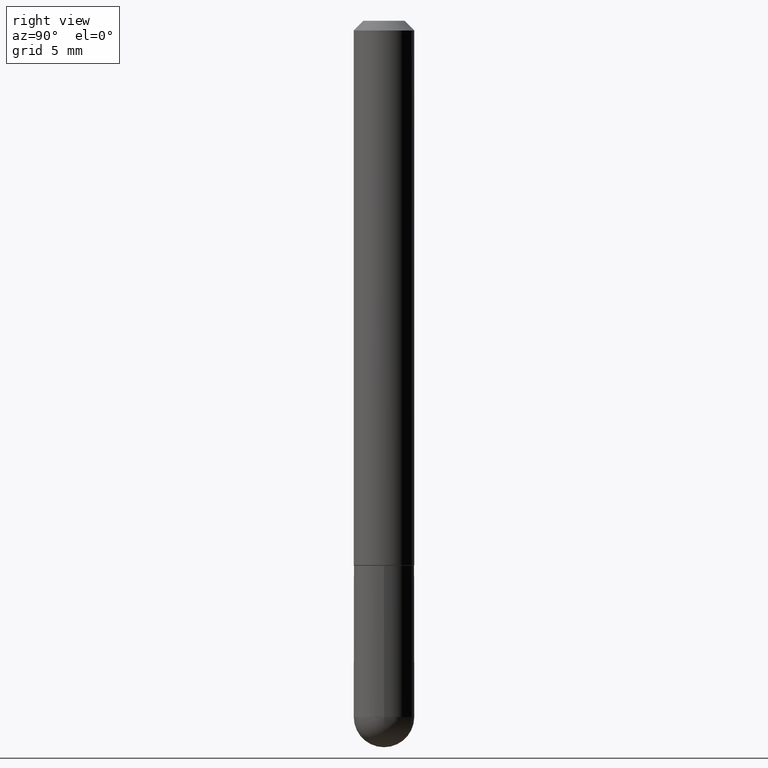
[diagram: clean part render]
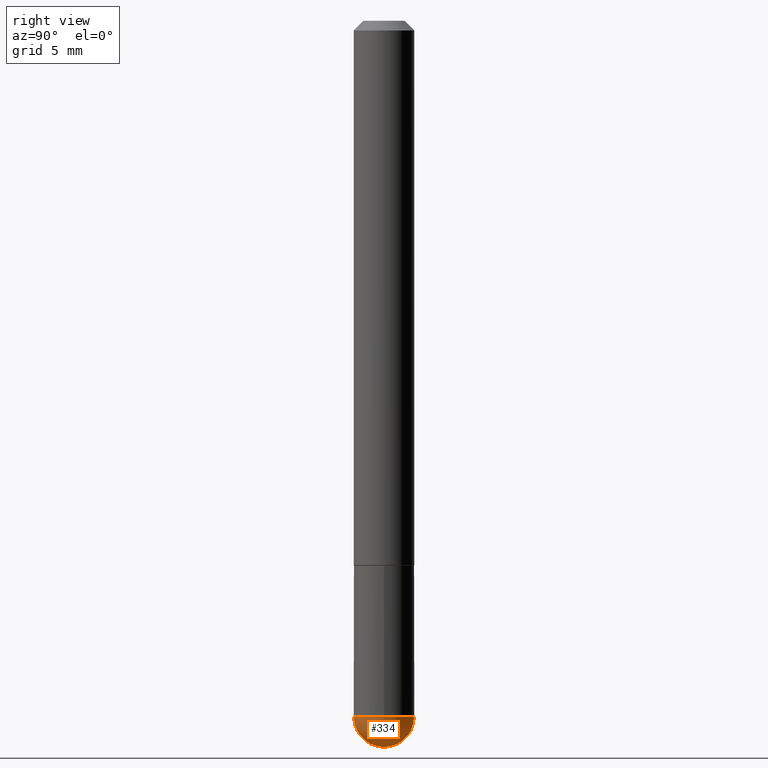
[diagram: same view with one face highlighted and labeled with its STEP entity id]
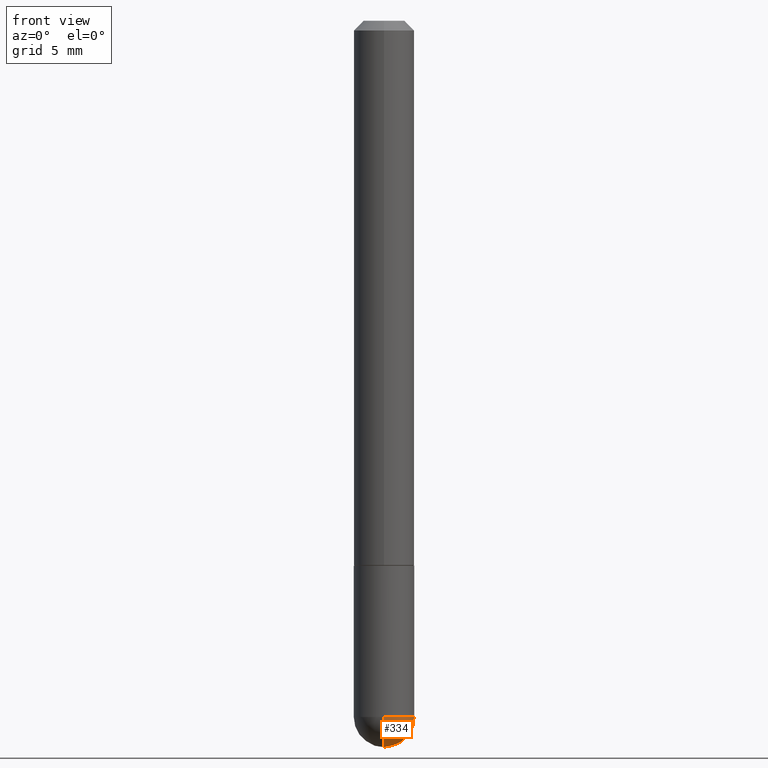
[diagram: same view with one face highlighted and labeled with its STEP entity id]
A machine part, right view. The second image highlights one B-rep face of the part: STEP entity #334.
A second angle (front view) of the same face is appended — the face is thin or edge-on in the first view.
In plain terms, the highlighted spherical surface has radius 1.5875 mm.
Its self-contained STEP definition (entity closure, byte-faithful):
#5 = AXIS2_PLACEMENT_3D ( 'NONE', #106, #361, #298 ) ;
#14 = DIRECTION ( 'NONE',  ( 6.982962677686266711E-15, 1.000000000000000000, 0.000000000000000000 ) ) ;
#29 = ORIENTED_EDGE ( 'NONE', *, *, #400, .F. ) ;
#45 = EDGE_CURVE ( 'NONE', #87, #155, #246, .T. ) ;
#60 = CARTESIAN_POINT ( 'NONE',  ( 3.184241630977247611E-29, -5.493186792727071849E-15, -1.437500000000000000 ) ) ;
#65 = ORIENTED_EDGE ( 'NONE', *, *, #270, .F. ) ;
#86 = SPHERICAL_SURFACE ( 'NONE', #293, 0.06250000000000018041 ) ;
#87 = VERTEX_POINT ( 'NONE', #215 ) ;
#104 = AXIS2_PLACEMENT_3D ( 'NONE', #245, #302, #14 ) ;
#106 = CARTESIAN_POINT ( 'NONE',  ( 3.515361408891134418E-29, -5.019004424587023131E-15, -1.437500000000000222 ) ) ;
#118 = DIRECTION ( 'NONE',  ( 6.982962677686265922E-15, 1.000000000000000000, -4.370956789862807739E-15 ) ) ;
#138 = AXIS2_PLACEMENT_3D ( 'NONE', #312, #282, #405 ) ;
#146 = CARTESIAN_POINT ( 'NONE',  ( 4.364351673554256397E-16, 0.06249999999999480971, -1.437500000000000444 ) ) ;
#155 = VERTEX_POINT ( 'NONE', #306 ) ;
#157 = VERTEX_POINT ( 'NONE', #146 ) ;
#174 = EDGE_CURVE ( 'NONE', #269, #157, #348, .T. ) ;
#185 = DIRECTION ( 'NONE',  ( -1.000000000000000000, 6.982962677686265922E-15, -4.883557194083112340E-29 ) ) ;
#187 = AXIS2_PLACEMENT_3D ( 'NONE', #315, #384, #284 ) ;
#215 = CARTESIAN_POINT ( 'NONE',  ( -4.440892098500294840E-16, -0.06250000000000532907, -1.437500000000000000 ) ) ;
#220 = ORIENTED_EDGE ( 'NONE', *, *, #45, .F. ) ;
#221 = FACE_OUTER_BOUND ( 'NONE', #227, .T. ) ;
#227 = EDGE_LOOP ( 'NONE', ( #65, #345, #29, #220 ) ) ;
#245 = CARTESIAN_POINT ( 'NONE',  ( 3.184241630977247611E-29, -5.493186792727071849E-15, -1.437500000000000000 ) ) ;
#246 = CIRCLE ( 'NONE', #5, 0.06249999999999995143 ) ;
#269 = VERTEX_POINT ( 'NONE', #379 ) ;
#270 = EDGE_CURVE ( 'NONE', #269, #87, #387, .T. ) ;
#282 = DIRECTION ( 'NONE',  ( -2.445468806185136597E-29, 3.491481338843145583E-15, 1.000000000000000000 ) ) ;
#284 = DIRECTION ( 'NONE',  ( -7.105427357601001859E-15, -1.000000000000000000, 0.000000000000000000 ) ) ;
#293 = AXIS2_PLACEMENT_3D ( 'NONE', #60, #185, #118 ) ;
#298 = DIRECTION ( 'NONE',  ( 1.000000000000000000, -6.982962677686268288E-15, 0.000000000000000000 ) ) ;
#302 = DIRECTION ( 'NONE',  ( 1.000000000000000000, -6.982962677686265922E-15, 4.883557194083112340E-29 ) ) ;
#306 = CARTESIAN_POINT ( 'NONE',  ( 0.06249999999999995143, -4.909895632748172453E-15, -1.437500000000000222 ) ) ;
#312 = CARTESIAN_POINT ( 'NONE',  ( 3.515361408891134418E-29, -5.019004424587023131E-15, -1.437500000000000222 ) ) ;
#315 = CARTESIAN_POINT ( 'NONE',  ( 3.184241630977247611E-29, -5.493186792727071849E-15, -1.437500000000000000 ) ) ;
#334 = ADVANCED_FACE ( 'NONE', ( #221 ), #86, .T. ) ;
#345 = ORIENTED_EDGE ( 'NONE', *, *, #174, .T. ) ;
#348 = CIRCLE ( 'NONE', #104, 0.06250000000000018041 ) ;
#361 = DIRECTION ( 'NONE',  ( -2.445468806185136597E-29, 3.491481338843145583E-15, 1.000000000000000000 ) ) ;
#379 = CARTESIAN_POINT ( 'NONE',  ( 3.339755826017505008E-29, -5.707577355157432999E-15, -1.500000000000000222 ) ) ;
#384 = DIRECTION ( 'NONE',  ( -1.000000000000000000, 7.105427357601001070E-15, -4.926315508542082329E-29 ) ) ;
#387 = CIRCLE ( 'NONE', #187, 0.06250000000000018041 ) ;
#400 = EDGE_CURVE ( 'NONE', #155, #157, #411, .T. ) ;
#405 = DIRECTION ( 'NONE',  ( 1.000000000000000000, -6.982962677686268288E-15, 0.000000000000000000 ) ) ;
#411 = CIRCLE ( 'NONE', #138, 0.06249999999999995143 ) ;